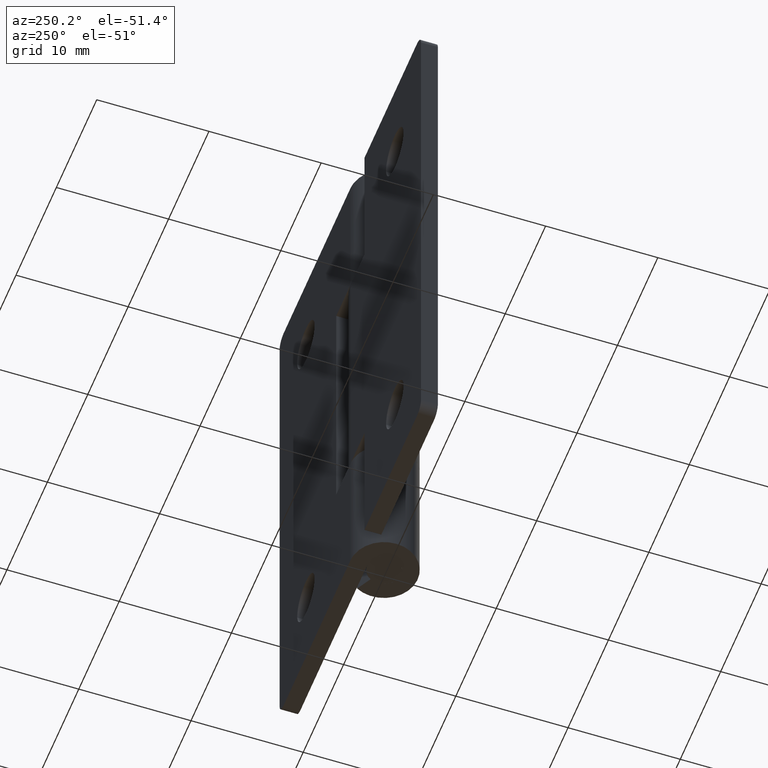
[diagram: clean part render]
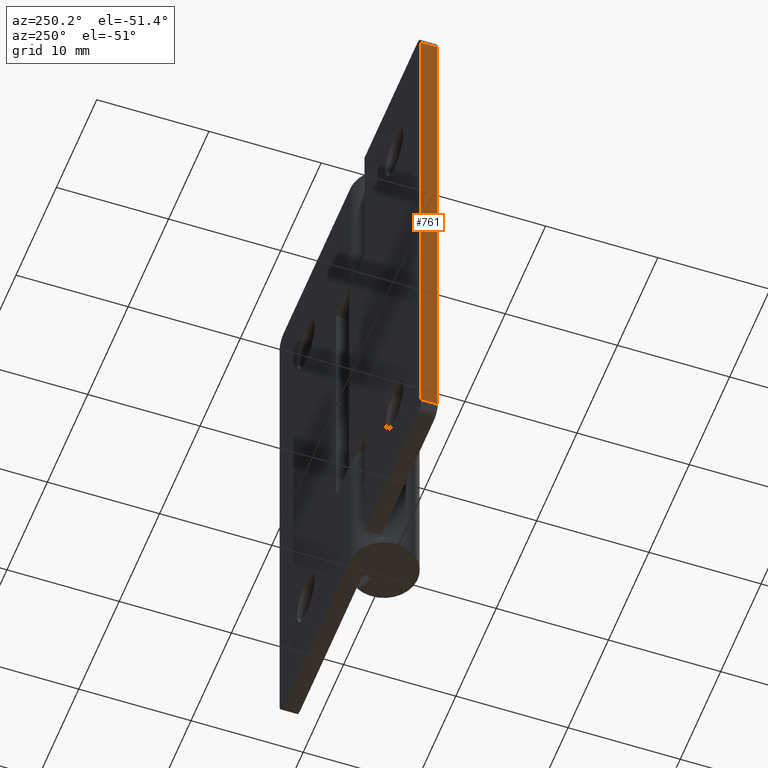
[diagram: same view with one face highlighted and labeled with its STEP entity id]
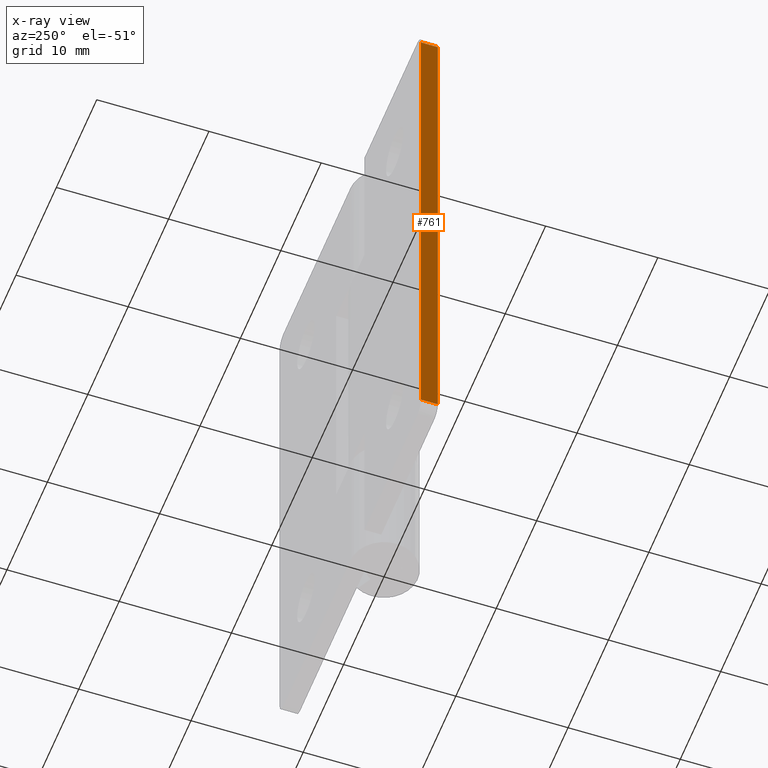
[diagram: x-ray of the same camera — body ghosted, the highlighted face saturated]
A machine part, auxiliary view. The second image highlights one B-rep face of the part: STEP entity #761.
The next image is the same camera in x-ray: the body ghosted, the highlighted face saturated — about 0% of this face is hidden behind the body in this view.
In plain terms, the highlighted face is a freeform B-spline surface patch.
Its self-contained STEP definition (entity closure, byte-faithful):
#424=CARTESIAN_POINT('',(-17.500000000000000,1.500000000000000,49.000008000000001));
#425=VERTEX_POINT('',#424);
#446=CARTESIAN_POINT('',(-17.500000000000000,3.0,49.000008000000001));
#447=VERTEX_POINT('',#446);
#461=CARTESIAN_POINT('',(-17.500000000000000,1.500000000000000,49.000008000000001));
#462=CARTESIAN_POINT('',(-17.500000000000000,3.0,49.000008000000001));
#463=QUASI_UNIFORM_CURVE('',1,(#461,#462),.UNSPECIFIED.,.F.,.U.);
#464=EDGE_CURVE('',#425,#447,#463,.T.);
#483=CARTESIAN_POINT('',(-17.500000000000000,1.500000000000000,1.0));
#484=VERTEX_POINT('',#483);
#500=CARTESIAN_POINT('',(-17.500000000000000,3.0,1.0));
#501=VERTEX_POINT('',#500);
#502=CARTESIAN_POINT('',(-17.500000000000000,3.0,1.0));
#503=CARTESIAN_POINT('',(-17.500000000000000,1.500000000000000,1.0));
#504=QUASI_UNIFORM_CURVE('',1,(#502,#503),.UNSPECIFIED.,.F.,.U.);
#505=EDGE_CURVE('',#501,#484,#504,.T.);
#742=CARTESIAN_POINT('',(-17.500000000000000,1.425075002907291,-1.397600306566670));
#743=CARTESIAN_POINT('',(-17.500000000000000,1.425075002907291,51.397609594027223));
#744=CARTESIAN_POINT('',(-17.500000000000000,3.074925037325845,-1.397600306566670));
#745=CARTESIAN_POINT('',(-17.500000000000000,3.074925037325845,51.397609594027223));
#746=B_SPLINE_SURFACE_WITH_KNOTS('',1,1,((#742,#744),(#743,#745)),.UNSPECIFIED.,.F.,.F.,.U.,(2,2),(2,2),(0.0,52.795209900593903),(0.041708334948495,0.958291687403247),.UNSPECIFIED.);
#747=CARTESIAN_POINT('',(-17.500000000000000,3.0,49.000008000000001));
#748=CARTESIAN_POINT('',(-17.500000000000000,3.0,1.0));
#749=QUASI_UNIFORM_CURVE('',1,(#747,#748),.UNSPECIFIED.,.F.,.U.);
#750=EDGE_CURVE('',#447,#501,#749,.T.);
#751=ORIENTED_EDGE('',*,*,#750,.T.);
#752=ORIENTED_EDGE('',*,*,#505,.T.);
#753=CARTESIAN_POINT('',(-17.500000000000000,1.500000000000000,49.000008000000001));
#754=CARTESIAN_POINT('',(-17.500000000000000,1.500000000000000,1.0));
#755=QUASI_UNIFORM_CURVE('',1,(#753,#754),.UNSPECIFIED.,.F.,.U.);
#756=EDGE_CURVE('',#425,#484,#755,.T.);
#757=ORIENTED_EDGE('',*,*,#756,.F.);
#758=ORIENTED_EDGE('',*,*,#464,.T.);
#759=EDGE_LOOP('',(#751,#752,#757,#758));
#760=FACE_OUTER_BOUND('',#759,.T.);
#761=ADVANCED_FACE('',(#760),#746,.T.);